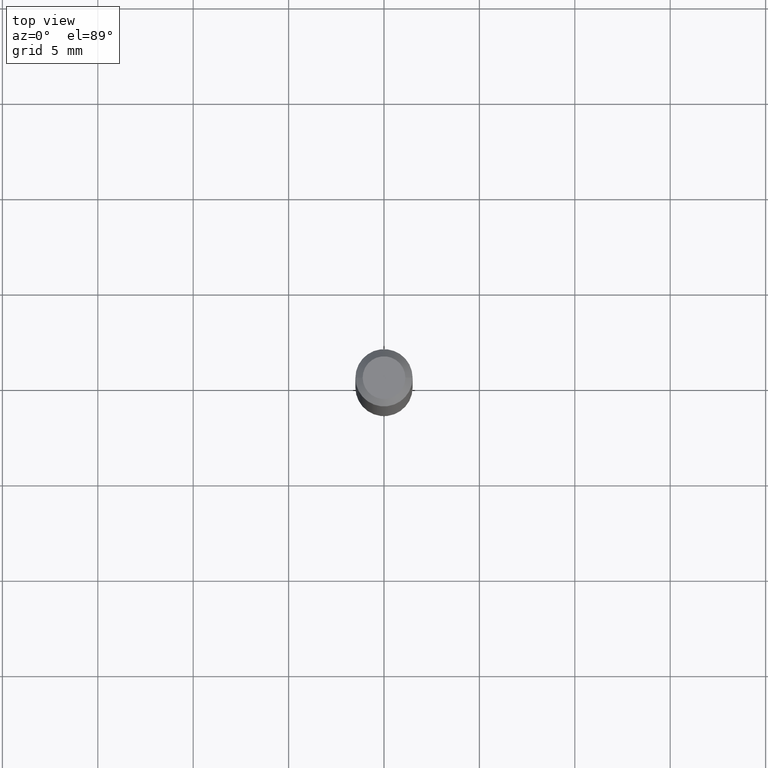
[diagram: clean part render]
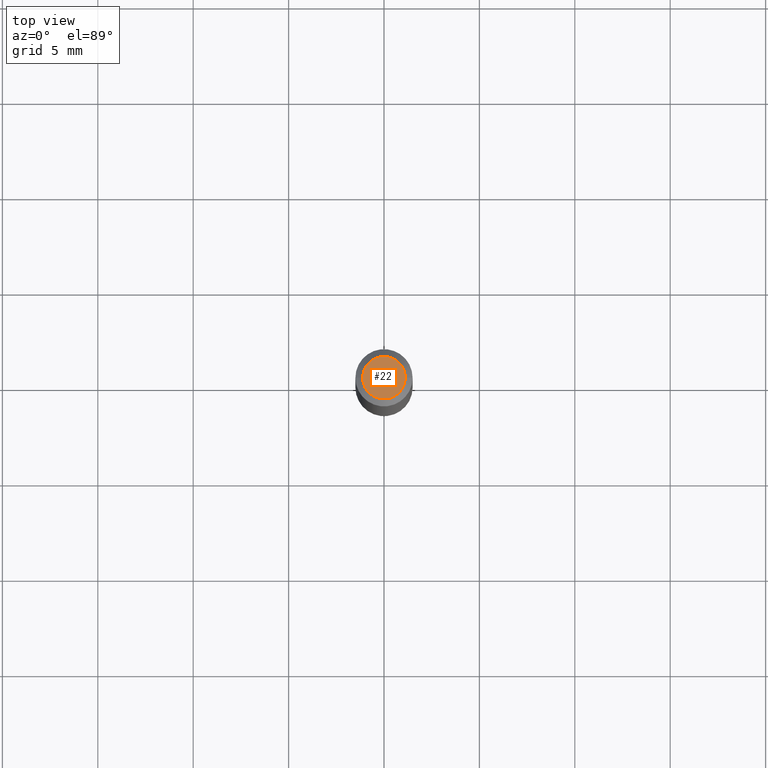
[diagram: same view with one face highlighted and labeled with its STEP entity id]
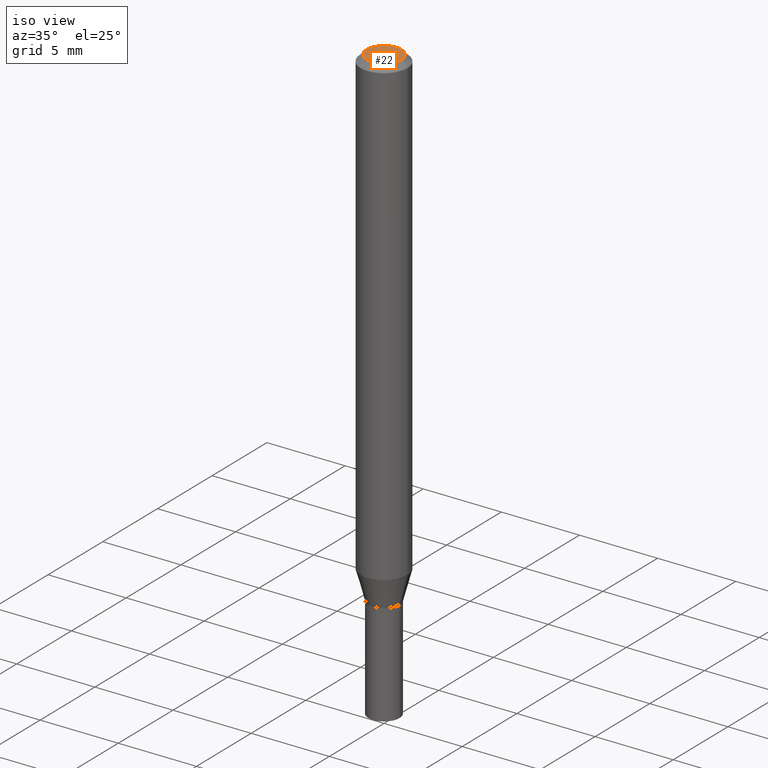
[diagram: same view with one face highlighted and labeled with its STEP entity id]
A machine part, top view. The second image highlights one B-rep face of the part: STEP entity #22.
A second angle (iso view) of the same face is appended — the face is thin or edge-on in the first view.
In plain terms, the highlighted planar face has unit normal (0, -0, -1).
Its self-contained STEP definition (entity closure, byte-faithful):
#1 = CARTESIAN_POINT ( 'NONE',  ( -8.641182519006289553E-45, 1.233731848647591164E-30, 3.533548453838711334E-16 ) ) ;
#18 = CIRCLE ( 'NONE', #454, 0.04404999999999999888 ) ;
#22 = ADVANCED_FACE ( 'NONE', ( #288 ), #393, .F. ) ;
#27 = ORIENTED_EDGE ( 'NONE', *, *, #399, .T. ) ;
#94 = EDGE_CURVE ( 'NONE', #455, #121, #383, .T. ) ;
#111 = DIRECTION ( 'NONE',  ( 2.438088387897960049E-29, -3.491481338843145188E-15, -1.000000000000000000 ) ) ;
#121 = VERTEX_POINT ( 'NONE', #229 ) ;
#151 = DIRECTION ( 'NONE',  ( -2.445468806185136597E-29, 3.491481338843145583E-15, 1.000000000000000000 ) ) ;
#152 = CARTESIAN_POINT ( 'NONE',  ( 0.04404999999999999888, -3.798447818264455642E-16, 3.533548453838735986E-16 ) ) ;
#194 = DIRECTION ( 'NONE',  ( 1.000000000000000000, -6.982962677686265922E-15, 4.819687581474398999E-29 ) ) ;
#218 = DIRECTION ( 'NONE',  ( 1.000000000000000000, -6.982962677686265922E-15, 4.819687581474398999E-29 ) ) ;
#229 = CARTESIAN_POINT ( 'NONE',  ( -0.04404999999999999888, 3.337856159934041534E-16, 3.533548453838689148E-16 ) ) ;
#260 = CARTESIAN_POINT ( 'NONE',  ( -8.641182519006289553E-45, 1.233731848647591164E-30, 3.533548453838711334E-16 ) ) ;
#288 = FACE_OUTER_BOUND ( 'NONE', #450, .T. ) ;
#291 = DIRECTION ( 'NONE',  ( -1.000000000000000000, 6.982962677686265922E-15, -4.876176775795935793E-29 ) ) ;
#333 = ORIENTED_EDGE ( 'NONE', *, *, #94, .T. ) ;
#383 = CIRCLE ( 'NONE', #448, 0.04404999999999999888 ) ;
#393 = PLANE ( 'NONE',  #417 ) ;
#396 = CARTESIAN_POINT ( 'NONE',  ( 3.075995059520799729E-16, 0.04404999999999999888, 2.287766971589501637E-17 ) ) ;
#399 = EDGE_CURVE ( 'NONE', #121, #455, #18, .T. ) ;
#413 = DIRECTION ( 'NONE',  ( -2.445468806185136597E-29, 3.491481338843145583E-15, 1.000000000000000000 ) ) ;
#417 = AXIS2_PLACEMENT_3D ( 'NONE', #396, #111, #291 ) ;
#448 = AXIS2_PLACEMENT_3D ( 'NONE', #1, #151, #218 ) ;
#450 = EDGE_LOOP ( 'NONE', ( #27, #333 ) ) ;
#454 = AXIS2_PLACEMENT_3D ( 'NONE', #260, #413, #194 ) ;
#455 = VERTEX_POINT ( 'NONE', #152 ) ;